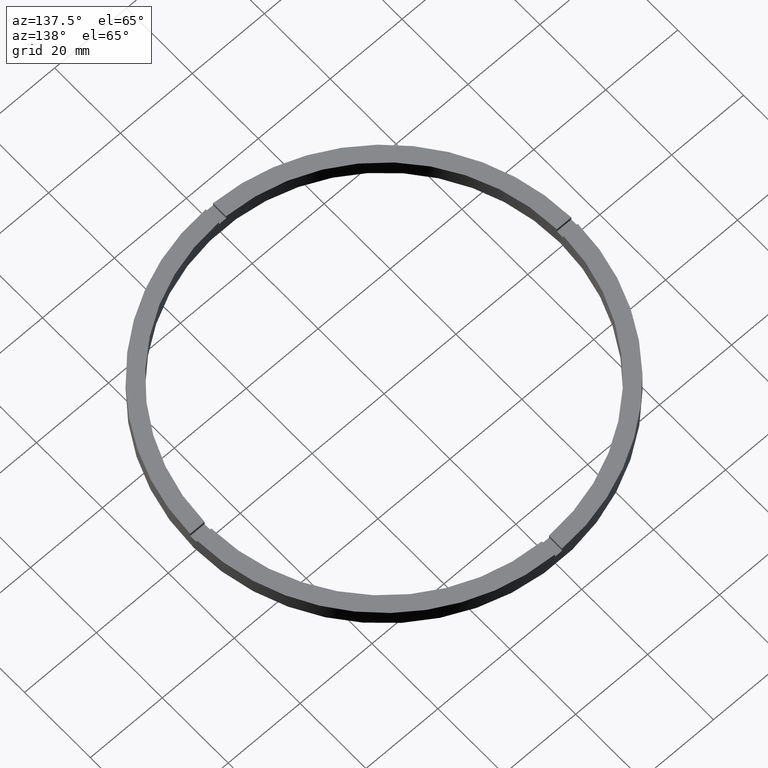
[diagram: clean part render]
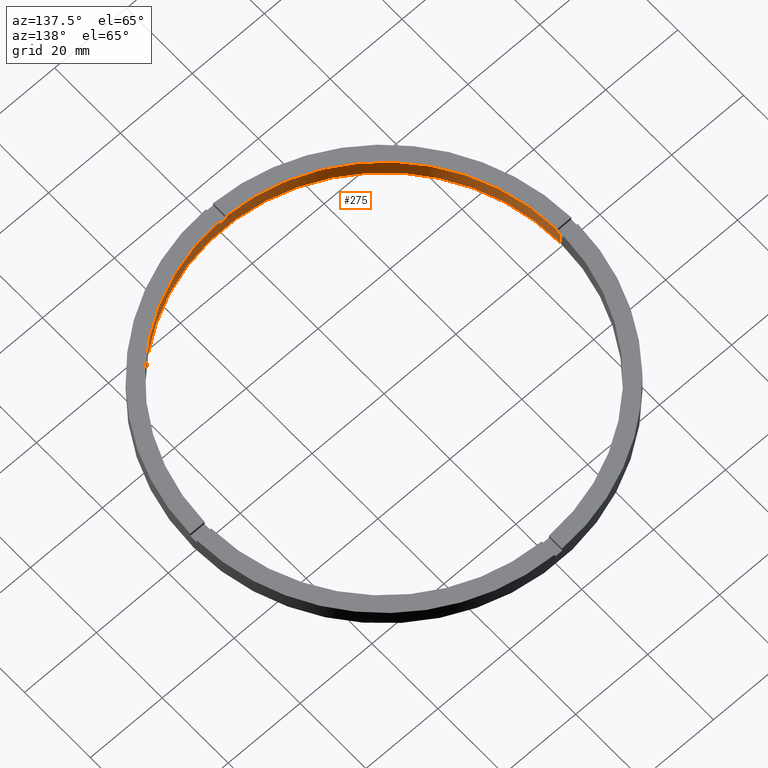
[diagram: same view with one face highlighted and labeled with its STEP entity id]
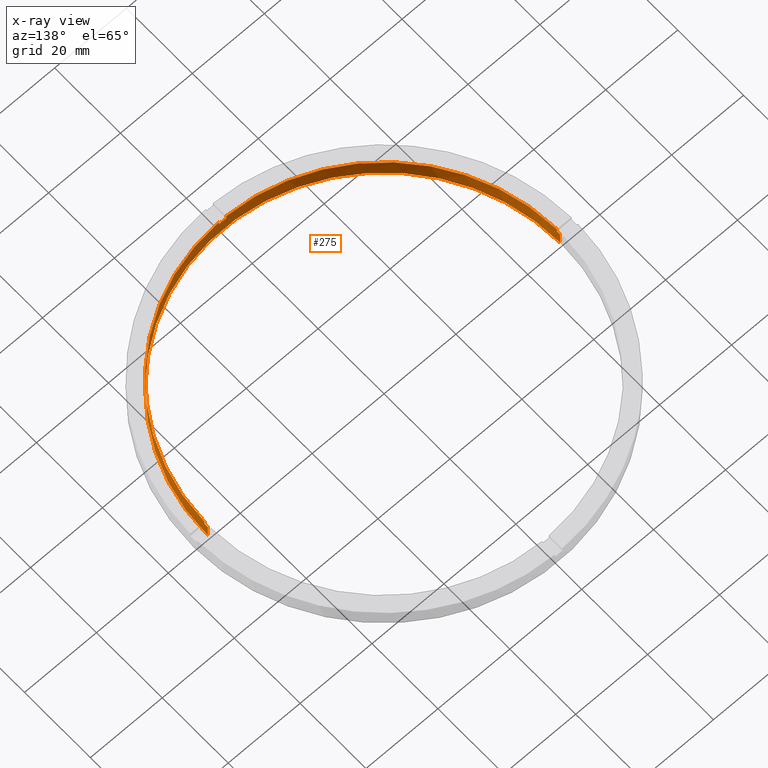
[diagram: x-ray of the same camera — body ghosted, the highlighted face saturated]
A machine part, auxiliary view. The second image highlights one B-rep face of the part: STEP entity #275.
The next image is the same camera in x-ray: the body ghosted, the highlighted face saturated — about 0% of this face is hidden behind the body in this view.
In plain terms, the highlighted cylindrical surface (partial cylindrical patch) has radius 49 mm, axis along (-0, -0, -1).
Its self-contained STEP definition (entity closure, byte-faithful):
#5 = CARTESIAN_POINT ( 'NONE',  ( 0.000000000000000000, 0.000000000000000000, 5.000000000000000000 ) ) ;
#23 = DIRECTION ( 'NONE',  ( 0.000000000000000000, 0.000000000000000000, 1.000000000000000000 ) ) ;
#29 = VECTOR ( 'NONE', #564, 1000.000000000000000 ) ;
#45 = CYLINDRICAL_SURFACE ( 'NONE', #532, 49.00000000000000000 ) ;
#49 = CIRCLE ( 'NONE', #665, 49.00000000000000000 ) ;
#57 = LINE ( 'NONE', #769, #29 ) ;
#59 = DIRECTION ( 'NONE',  ( -0.000000000000000000, -0.000000000000000000, -1.000000000000000000 ) ) ;
#69 = CARTESIAN_POINT ( 'NONE',  ( -1.000000000000156763, -48.98979485566356118, 5.000000000000000000 ) ) ;
#70 = VECTOR ( 'NONE', #59, 1000.000000000000000 ) ;
#74 = DIRECTION ( 'NONE',  ( 1.000000000000000000, 0.000000000000000000, 0.000000000000000000 ) ) ;
#89 = LINE ( 'NONE', #770, #90 ) ;
#90 = VECTOR ( 'NONE', #630, 1000.000000000000000 ) ;
#94 = VECTOR ( 'NONE', #259, 1000.000000000000000 ) ;
#103 = CARTESIAN_POINT ( 'NONE',  ( -48.98979485566356118, -1.000000000000031530, 4.000000000000000000 ) ) ;
#117 = ORIENTED_EDGE ( 'NONE', *, *, #509, .T. ) ;
#118 = EDGE_CURVE ( 'NONE', #705, #474, #89, .T. ) ;
#126 = ORIENTED_EDGE ( 'NONE', *, *, #379, .F. ) ;
#129 = VERTEX_POINT ( 'NONE', #520 ) ;
#133 = ORIENTED_EDGE ( 'NONE', *, *, #167, .T. ) ;
#143 = CARTESIAN_POINT ( 'NONE',  ( 0.000000000000000000, 0.000000000000000000, 4.000000000000000000 ) ) ;
#144 = CARTESIAN_POINT ( 'NONE',  ( 0.000000000000000000, 0.000000000000000000, 5.000000000000000000 ) ) ;
#153 = EDGE_CURVE ( 'NONE', #437, #240, #620, .T. ) ;
#155 = ORIENTED_EDGE ( 'NONE', *, *, #118, .F. ) ;
#157 = DIRECTION ( 'NONE',  ( 1.000000000000000000, 0.000000000000000000, 0.000000000000000000 ) ) ;
#159 = ORIENTED_EDGE ( 'NONE', *, *, #419, .T. ) ;
#162 = AXIS2_PLACEMENT_3D ( 'NONE', #143, #352, #157 ) ;
#167 = EDGE_CURVE ( 'NONE', #244, #438, #616, .T. ) ;
#170 = DIRECTION ( 'NONE',  ( 1.000000000000000000, 0.000000000000000000, 0.000000000000000000 ) ) ;
#177 = DIRECTION ( 'NONE',  ( 1.000000000000000000, 0.000000000000000000, 0.000000000000000000 ) ) ;
#178 = ORIENTED_EDGE ( 'NONE', *, *, #311, .T. ) ;
#183 = EDGE_LOOP ( 'NONE', ( #159, #413, #126, #186, #391, #155, #117, #440, #133, #696, #178, #443 ) ) ;
#186 = ORIENTED_EDGE ( 'NONE', *, *, #153, .F. ) ;
#207 = CARTESIAN_POINT ( 'NONE',  ( 0.9999999999998432365, -48.98979485566356828, 5.000000000000000000 ) ) ;
#217 = CARTESIAN_POINT ( 'NONE',  ( 0.000000000000000000, 0.000000000000000000, 0.000000000000000000 ) ) ;
#240 = VERTEX_POINT ( 'NONE', #523 ) ;
#244 = VERTEX_POINT ( 'NONE', #637 ) ;
#245 = EDGE_CURVE ( 'NONE', #244, #672, #625, .T. ) ;
#249 = DIRECTION ( 'NONE',  ( 0.000000000000000000, 0.000000000000000000, 1.000000000000000000 ) ) ;
#253 = CARTESIAN_POINT ( 'NONE',  ( 0.000000000000000000, 0.000000000000000000, 4.000000000000000000 ) ) ;
#259 = DIRECTION ( 'NONE',  ( -0.000000000000000000, -0.000000000000000000, -1.000000000000000000 ) ) ;
#271 = DIRECTION ( 'NONE',  ( 0.000000000000000000, 0.000000000000000000, 1.000000000000000000 ) ) ;
#275 = ADVANCED_FACE ( 'NONE', ( #324 ), #45, .F. ) ;
#277 = AXIS2_PLACEMENT_3D ( 'NONE', #312, #694, #439 ) ;
#290 = CIRCLE ( 'NONE', #162, 49.00000000000000000 ) ;
#291 = DIRECTION ( 'NONE',  ( 0.000000000000000000, 0.000000000000000000, 1.000000000000000000 ) ) ;
#294 = CARTESIAN_POINT ( 'NONE',  ( 48.98979485566356118, -1.000000000000154765, 5.000000000000000000 ) ) ;
#306 = LINE ( 'NONE', #420, #314 ) ;
#311 = EDGE_CURVE ( 'NONE', #129, #698, #49, .T. ) ;
#312 = CARTESIAN_POINT ( 'NONE',  ( 0.000000000000000000, 0.000000000000000000, 4.000000000000000000 ) ) ;
#314 = VECTOR ( 'NONE', #348, 1000.000000000000000 ) ;
#324 = FACE_OUTER_BOUND ( 'NONE', #183, .T. ) ;
#336 = DIRECTION ( 'NONE',  ( -0.000000000000000000, -0.000000000000000000, -1.000000000000000000 ) ) ;
#341 = AXIS2_PLACEMENT_3D ( 'NONE', #5, #249, #177 ) ;
#345 = LINE ( 'NONE', #207, #70 ) ;
#348 = DIRECTION ( 'NONE',  ( 0.000000000000000000, 0.000000000000000000, 1.000000000000000000 ) ) ;
#349 = EDGE_CURVE ( 'NONE', #746, #459, #57, .T. ) ;
#352 = DIRECTION ( 'NONE',  ( 0.000000000000000000, 0.000000000000000000, 1.000000000000000000 ) ) ;
#356 = VECTOR ( 'NONE', #23, 1000.000000000000000 ) ;
#375 = DIRECTION ( 'NONE',  ( 0.000000000000000000, 0.000000000000000000, 1.000000000000000000 ) ) ;
#379 = EDGE_CURVE ( 'NONE', #240, #459, #574, .T. ) ;
#391 = ORIENTED_EDGE ( 'NONE', *, *, #502, .T. ) ;
#413 = ORIENTED_EDGE ( 'NONE', *, *, #349, .T. ) ;
#419 = EDGE_CURVE ( 'NONE', #716, #746, #290, .T. ) ;
#420 = CARTESIAN_POINT ( 'NONE',  ( 48.98979485566356118, -1.000000000000154765, 5.000000000000000000 ) ) ;
#437 = VERTEX_POINT ( 'NONE', #639 ) ;
#438 = VERTEX_POINT ( 'NONE', #641 ) ;
#439 = DIRECTION ( 'NONE',  ( 1.000000000000000000, 0.000000000000000000, 0.000000000000000000 ) ) ;
#440 = ORIENTED_EDGE ( 'NONE', *, *, #245, .F. ) ;
#443 = ORIENTED_EDGE ( 'NONE', *, *, #593, .F. ) ;
#450 = CARTESIAN_POINT ( 'NONE',  ( -1.000000000000156763, -48.98979485566356118, 5.000000000000000000 ) ) ;
#459 = VERTEX_POINT ( 'NONE', #482 ) ;
#474 = VERTEX_POINT ( 'NONE', #103 ) ;
#482 = CARTESIAN_POINT ( 'NONE',  ( 49.00000000000000000, 6.000769315822030937E-15, 0.000000000000000000 ) ) ;
#500 = AXIS2_PLACEMENT_3D ( 'NONE', #253, #291, #170 ) ;
#502 = EDGE_CURVE ( 'NONE', #437, #474, #562, .T. ) ;
#509 = EDGE_CURVE ( 'NONE', #705, #672, #568, .T. ) ;
#514 = DIRECTION ( 'NONE',  ( 1.000000000000000000, 0.000000000000000000, 0.000000000000000000 ) ) ;
#520 = CARTESIAN_POINT ( 'NONE',  ( 0.9999999999998432365, -48.98979485566356828, 5.000000000000000000 ) ) ;
#523 = CARTESIAN_POINT ( 'NONE',  ( -49.00000000000000000, 0.000000000000000000, 0.000000000000000000 ) ) ;
#532 = AXIS2_PLACEMENT_3D ( 'NONE', #636, #336, #702 ) ;
#542 = CARTESIAN_POINT ( 'NONE',  ( -49.00000000000000000, 0.000000000000000000, 5.000000000000000000 ) ) ;
#562 = CIRCLE ( 'NONE', #500, 49.00000000000000000 ) ;
#564 = DIRECTION ( 'NONE',  ( -0.000000000000000000, -0.000000000000000000, -1.000000000000000000 ) ) ;
#568 = CIRCLE ( 'NONE', #341, 49.00000000000000000 ) ;
#574 = CIRCLE ( 'NONE', #781, 49.00000000000000000 ) ;
#593 = EDGE_CURVE ( 'NONE', #716, #698, #306, .T. ) ;
#612 = CARTESIAN_POINT ( 'NONE',  ( -48.98979485566356118, -1.000000000000031530, 5.000000000000000000 ) ) ;
#616 = CIRCLE ( 'NONE', #277, 49.00000000000000000 ) ;
#620 = LINE ( 'NONE', #542, #94 ) ;
#625 = LINE ( 'NONE', #69, #356 ) ;
#630 = DIRECTION ( 'NONE',  ( -0.000000000000000000, -0.000000000000000000, -1.000000000000000000 ) ) ;
#636 = CARTESIAN_POINT ( 'NONE',  ( 0.000000000000000000, 0.000000000000000000, 5.000000000000000000 ) ) ;
#637 = CARTESIAN_POINT ( 'NONE',  ( -1.000000000000156763, -48.98979485566356118, 4.000000000000000000 ) ) ;
#639 = CARTESIAN_POINT ( 'NONE',  ( -49.00000000000000000, 0.000000000000000000, 4.000000000000000000 ) ) ;
#641 = CARTESIAN_POINT ( 'NONE',  ( 0.9999999999998432365, -48.98979485566356828, 4.000000000000000000 ) ) ;
#660 = CARTESIAN_POINT ( 'NONE',  ( 48.98979485566356118, -1.000000000000154765, 4.000000000000000000 ) ) ;
#665 = AXIS2_PLACEMENT_3D ( 'NONE', #144, #375, #74 ) ;
#672 = VERTEX_POINT ( 'NONE', #450 ) ;
#694 = DIRECTION ( 'NONE',  ( -0.000000000000000000, 0.000000000000000000, 1.000000000000000000 ) ) ;
#696 = ORIENTED_EDGE ( 'NONE', *, *, #778, .F. ) ;
#698 = VERTEX_POINT ( 'NONE', #294 ) ;
#702 = DIRECTION ( 'NONE',  ( -1.000000000000000000, 0.000000000000000000, 0.000000000000000000 ) ) ;
#705 = VERTEX_POINT ( 'NONE', #612 ) ;
#716 = VERTEX_POINT ( 'NONE', #660 ) ;
#746 = VERTEX_POINT ( 'NONE', #750 ) ;
#750 = CARTESIAN_POINT ( 'NONE',  ( 49.00000000000000000, 6.000769315822030937E-15, 4.000000000000000000 ) ) ;
#769 = CARTESIAN_POINT ( 'NONE',  ( 49.00000000000000000, 6.000769315822030937E-15, 5.000000000000000000 ) ) ;
#770 = CARTESIAN_POINT ( 'NONE',  ( -48.98979485566356118, -1.000000000000031530, 5.000000000000000000 ) ) ;
#778 = EDGE_CURVE ( 'NONE', #129, #438, #345, .T. ) ;
#781 = AXIS2_PLACEMENT_3D ( 'NONE', #217, #271, #514 ) ;